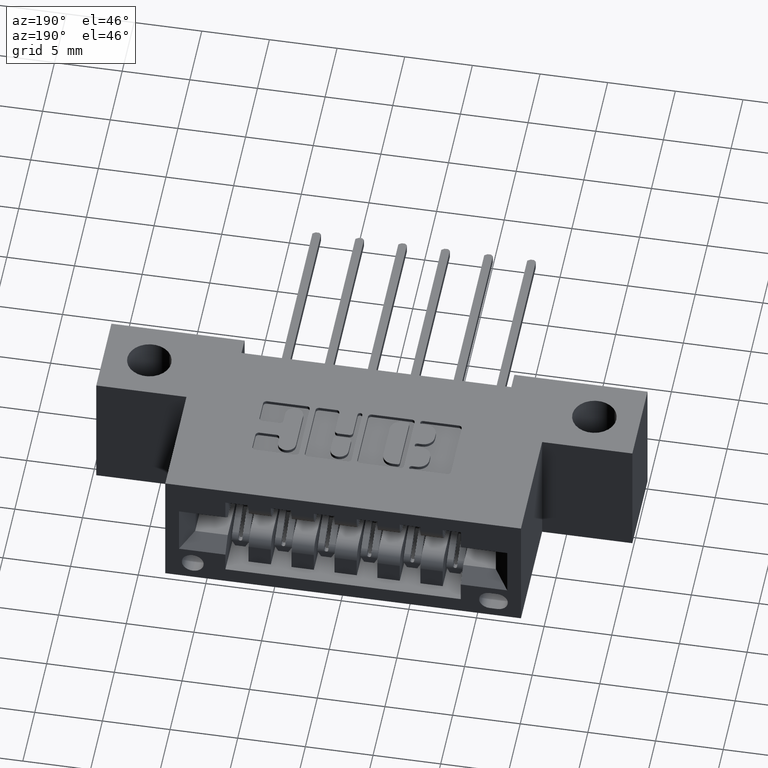
[diagram: clean part render]
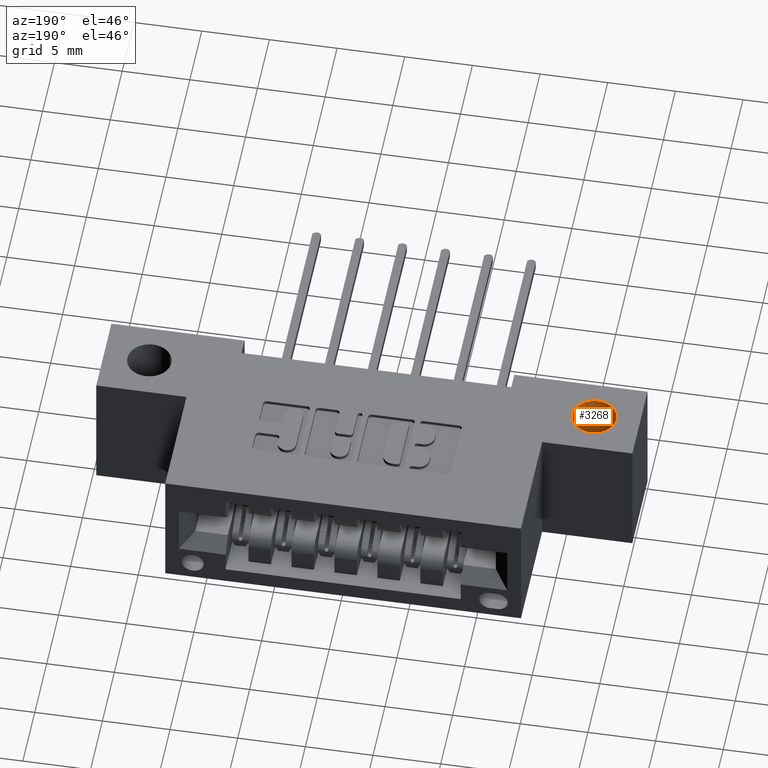
[diagram: same view with one face highlighted and labeled with its STEP entity id]
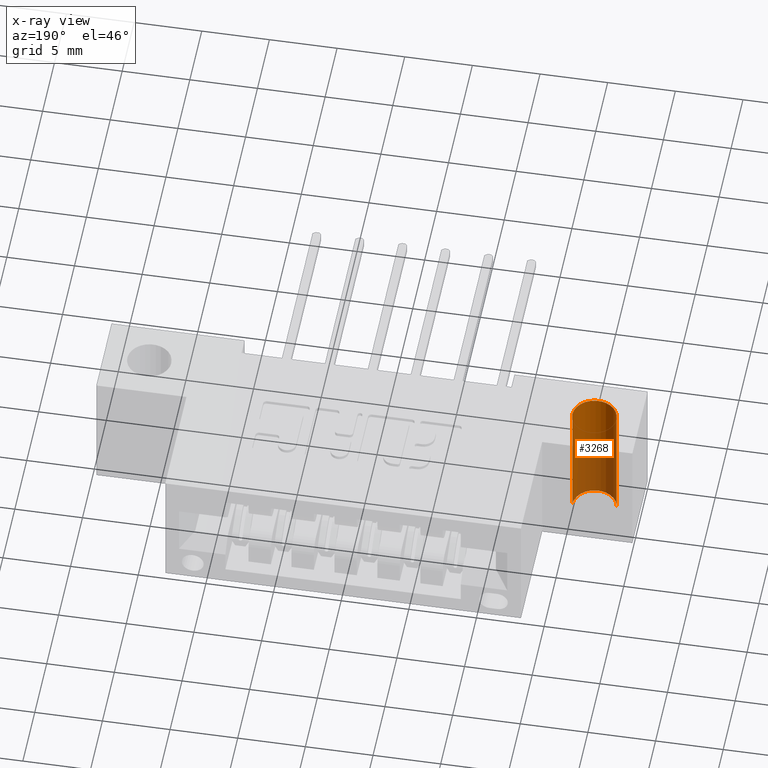
[diagram: x-ray of the same camera — body ghosted, the highlighted face saturated]
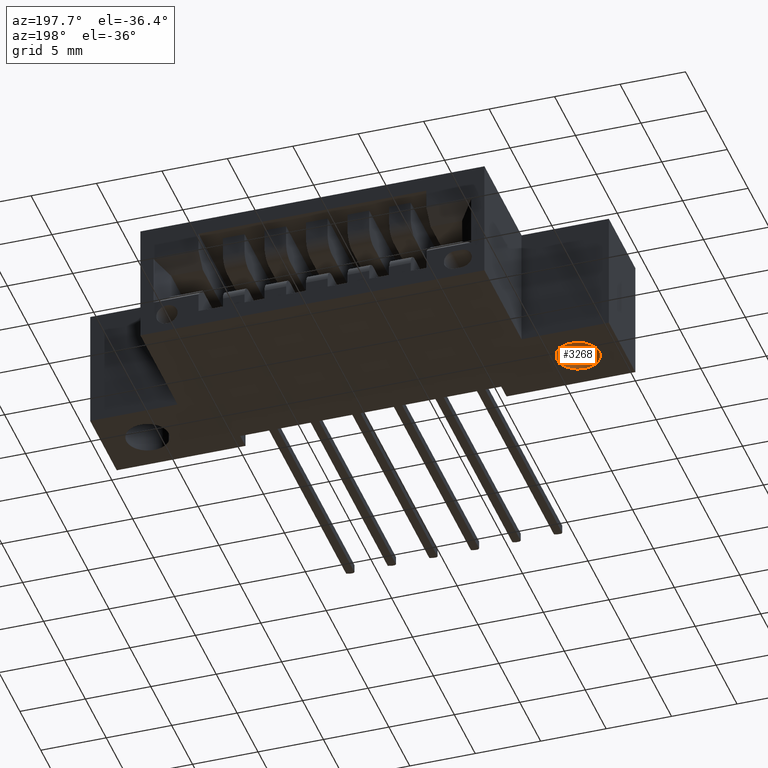
[diagram: same view with one face highlighted and labeled with its STEP entity id]
A machine part, auxiliary view. The second image highlights one B-rep face of the part: STEP entity #3268.
The next image is the same camera in x-ray: the body ghosted, the highlighted face saturated — about 46% of this face is hidden behind the body in this view.
A second angle (auxiliary view) of the same face is appended — the face is thin or edge-on in the first view.
In plain terms, the highlighted cylindrical surface (edge-blend (fillet) strip) has radius 1.6256 mm, axis along (0, 0, 1).
Its self-contained STEP definition (entity closure, byte-faithful):
#468 = EDGE_CURVE ( 'NONE', #6139, #5657, #1123, .T. ) ;
#699 = CARTESIAN_POINT ( 'NONE',  ( 0.06850000000000031064, 0.1249999999999999584, 0.0000000000000000000 ) ) ;
#1020 = VERTEX_POINT ( 'NONE', #2752 ) ;
#1123 = LINE ( 'NONE', #4575, #8229 ) ;
#1186 = DIRECTION ( 'NONE',  ( -0.0000000000000000000, -0.0000000000000000000, 1.000000000000000000 ) ) ;
#1354 = DIRECTION ( 'NONE',  ( 1.000000000000000000, 0.0000000000000000000, 0.0000000000000000000 ) ) ;
#1613 = VERTEX_POINT ( 'NONE', #6220 ) ;
#1680 = AXIS2_PLACEMENT_3D ( 'NONE', #4464, #1186, #3842 ) ;
#2214 = EDGE_CURVE ( 'NONE', #5657, #1020, #3977, .T. ) ;
#2250 = ORIENTED_EDGE ( 'NONE', *, *, #2214, .T. ) ;
#2571 = DIRECTION ( 'NONE',  ( -0.0000000000000000000, -0.0000000000000000000, 1.000000000000000000 ) ) ;
#2752 = CARTESIAN_POINT ( 'NONE',  ( 0.1965000000000002855, 0.1249999999999999584, 0.0000000000000000000 ) ) ;
#2952 = AXIS2_PLACEMENT_3D ( 'NONE', #7876, #3870, #1354 ) ;
#3012 = DIRECTION ( 'NONE',  ( 0.0000000000000000000, 0.0000000000000000000, 1.000000000000000000 ) ) ;
#3181 = LINE ( 'NONE', #8516, #6840 ) ;
#3268 = ADVANCED_FACE ( 'NONE', ( #7117 ), #7777, .F. ) ;
#3842 = DIRECTION ( 'NONE',  ( 1.000000000000000000, 0.0000000000000000000, 0.0000000000000000000 ) ) ;
#3870 = DIRECTION ( 'NONE',  ( 0.0000000000000000000, 0.0000000000000000000, 1.000000000000000000 ) ) ;
#3881 = EDGE_CURVE ( 'NONE', #1613, #1020, #3181, .T. ) ;
#3914 = DIRECTION ( 'NONE',  ( -0.0000000000000000000, -0.0000000000000000000, 1.000000000000000000 ) ) ;
#3977 = CIRCLE ( 'NONE', #5104, 0.06399999999999998745 ) ;
#4464 = CARTESIAN_POINT ( 'NONE',  ( 0.1325000000000002842, 0.1249999999999999584, -0.3700000000000001621 ) ) ;
#4575 = CARTESIAN_POINT ( 'NONE',  ( 0.06850000000000031064, 0.1249999999999999584, -0.3700000000000001621 ) ) ;
#4623 = CIRCLE ( 'NONE', #2952, 0.06399999999999998745 ) ;
#4679 = ORIENTED_EDGE ( 'NONE', *, *, #468, .T. ) ;
#4951 = EDGE_CURVE ( 'NONE', #6139, #1613, #4623, .T. ) ;
#5104 = AXIS2_PLACEMENT_3D ( 'NONE', #8260, #3012, #8388 ) ;
#5657 = VERTEX_POINT ( 'NONE', #699 ) ;
#6139 = VERTEX_POINT ( 'NONE', #7918 ) ;
#6220 = CARTESIAN_POINT ( 'NONE',  ( 0.1965000000000002855, 0.1249999999999999584, -0.3700000000000001621 ) ) ;
#6374 = ORIENTED_EDGE ( 'NONE', *, *, #3881, .F. ) ;
#6840 = VECTOR ( 'NONE', #2571, 39.37007874015748143 ) ;
#6856 = ORIENTED_EDGE ( 'NONE', *, *, #4951, .F. ) ;
#7117 = FACE_OUTER_BOUND ( 'NONE', #7582, .T. ) ;
#7582 = EDGE_LOOP ( 'NONE', ( #6856, #4679, #2250, #6374 ) ) ;
#7777 = CYLINDRICAL_SURFACE ( 'NONE', #1680, 0.06399999999999998745 ) ;
#7876 = CARTESIAN_POINT ( 'NONE',  ( 0.1325000000000002842, 0.1249999999999999584, -0.3700000000000001621 ) ) ;
#7918 = CARTESIAN_POINT ( 'NONE',  ( 0.06850000000000031064, 0.1249999999999999584, -0.3700000000000001621 ) ) ;
#8229 = VECTOR ( 'NONE', #3914, 39.37007874015748143 ) ;
#8260 = CARTESIAN_POINT ( 'NONE',  ( 0.1325000000000002842, 0.1249999999999999584, 0.0000000000000000000 ) ) ;
#8388 = DIRECTION ( 'NONE',  ( 1.000000000000000000, 0.0000000000000000000, 0.0000000000000000000 ) ) ;
#8516 = CARTESIAN_POINT ( 'NONE',  ( 0.1965000000000002855, 0.1249999999999999584, -0.3700000000000001621 ) ) ;